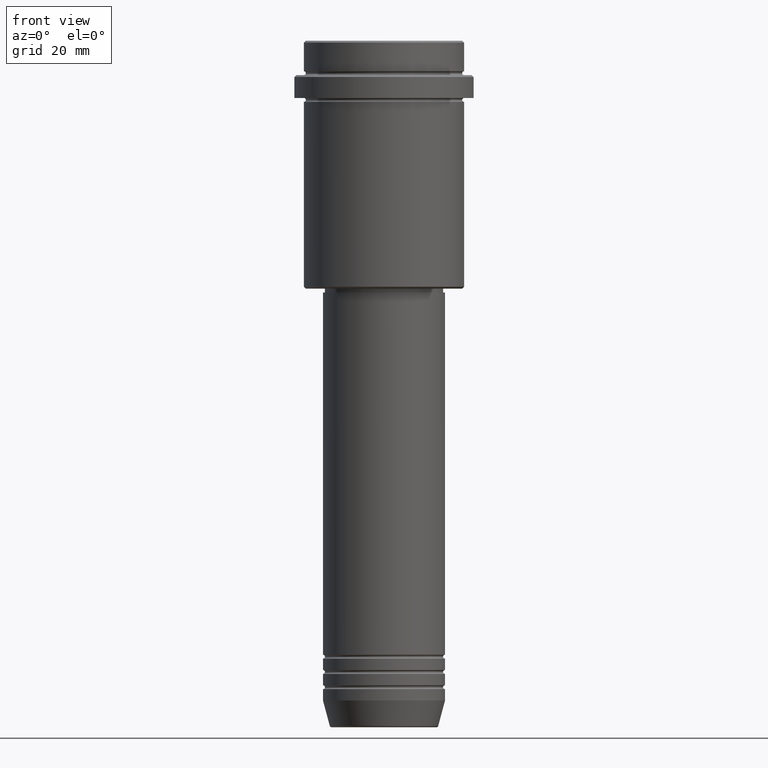
[diagram: clean part render]
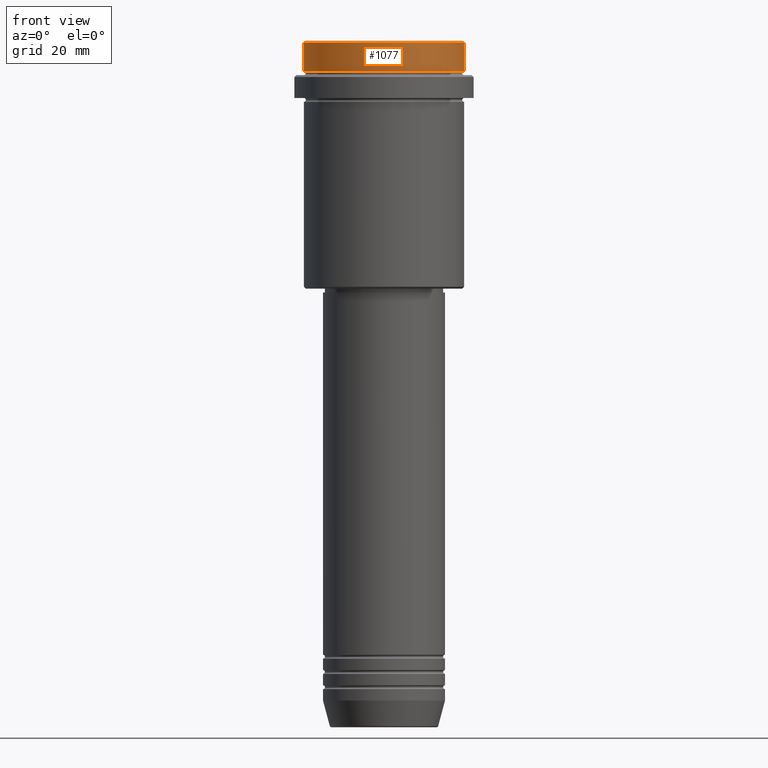
[diagram: same view with one face highlighted and labeled with its STEP entity id]
A machine part, front view. The second image highlights one B-rep face of the part: STEP entity #1077.
In plain terms, the highlighted cylindrical surface (partial cylindrical patch) has radius 21 mm, axis along (-0, -0, 1).
Its self-contained STEP definition (entity closure, byte-faithful):
#2 = CARTESIAN_POINT ( 'NONE',  ( 21.00000000000000000, 0.000000000000000000, -7.999999999999998224 ) ) ;
#57 = CARTESIAN_POINT ( 'NONE',  ( 21.00000000000000000, 0.000000000000000000, -0.5000000000000108802 ) ) ;
#150 = VECTOR ( 'NONE', #1058, 1000.000000000000000 ) ;
#217 = CARTESIAN_POINT ( 'NONE',  ( -21.00000000000000000, 2.571758278209441661E-15, -0.5000000000000108802 ) ) ;
#262 = CIRCLE ( 'NONE', #1029, 21.00000000000000000 ) ;
#275 = EDGE_CURVE ( 'NONE', #638, #1207, #355, .T. ) ;
#309 = ORIENTED_EDGE ( 'NONE', *, *, #926, .F. ) ;
#334 = VERTEX_POINT ( 'NONE', #676 ) ;
#337 = CIRCLE ( 'NONE', #1118, 21.00000000000000000 ) ;
#348 = EDGE_CURVE ( 'NONE', #1207, #533, #262, .T. ) ;
#355 = LINE ( 'NONE', #445, #979 ) ;
#379 = ORIENTED_EDGE ( 'NONE', *, *, #630, .T. ) ;
#442 = EDGE_LOOP ( 'NONE', ( #309, #379, #458, #985 ) ) ;
#445 = CARTESIAN_POINT ( 'NONE',  ( 21.00000000000000000, 0.000000000000000000, 0.000000000000000000 ) ) ;
#454 = DIRECTION ( 'NONE',  ( -0.000000000000000000, -0.000000000000000000, 1.000000000000000000 ) ) ;
#458 = ORIENTED_EDGE ( 'NONE', *, *, #275, .T. ) ;
#462 = DIRECTION ( 'NONE',  ( 1.000000000000000000, 0.000000000000000000, 0.000000000000000000 ) ) ;
#466 = FACE_OUTER_BOUND ( 'NONE', #442, .T. ) ;
#533 = VERTEX_POINT ( 'NONE', #217 ) ;
#548 = DIRECTION ( 'NONE',  ( -0.000000000000000000, -0.000000000000000000, 1.000000000000000000 ) ) ;
#555 = CARTESIAN_POINT ( 'NONE',  ( 0.000000000000000000, 0.000000000000000000, -7.999999999999998224 ) ) ;
#630 = EDGE_CURVE ( 'NONE', #334, #638, #337, .T. ) ;
#638 = VERTEX_POINT ( 'NONE', #2 ) ;
#676 = CARTESIAN_POINT ( 'NONE',  ( -21.00000000000000000, 2.571758278209441661E-15, -7.999999999999998224 ) ) ;
#698 = DIRECTION ( 'NONE',  ( -0.000000000000000000, -0.000000000000000000, 1.000000000000000000 ) ) ;
#768 = DIRECTION ( 'NONE',  ( 1.000000000000000000, 0.000000000000000000, 0.000000000000000000 ) ) ;
#781 = CYLINDRICAL_SURFACE ( 'NONE', #986, 21.00000000000000000 ) ;
#806 = DIRECTION ( 'NONE',  ( 0.000000000000000000, 0.000000000000000000, -1.000000000000000000 ) ) ;
#901 = CARTESIAN_POINT ( 'NONE',  ( 0.000000000000000000, 0.000000000000000000, 0.000000000000000000 ) ) ;
#926 = EDGE_CURVE ( 'NONE', #334, #533, #1084, .T. ) ;
#979 = VECTOR ( 'NONE', #698, 1000.000000000000000 ) ;
#985 = ORIENTED_EDGE ( 'NONE', *, *, #348, .T. ) ;
#986 = AXIS2_PLACEMENT_3D ( 'NONE', #901, #454, #768 ) ;
#1008 = CARTESIAN_POINT ( 'NONE',  ( 0.000000000000000000, 0.000000000000000000, -0.5000000000000108802 ) ) ;
#1029 = AXIS2_PLACEMENT_3D ( 'NONE', #1008, #806, #462 ) ;
#1058 = DIRECTION ( 'NONE',  ( -0.000000000000000000, -0.000000000000000000, 1.000000000000000000 ) ) ;
#1077 = ADVANCED_FACE ( 'NONE', ( #466 ), #781, .T. ) ;
#1084 = LINE ( 'NONE', #1282, #150 ) ;
#1118 = AXIS2_PLACEMENT_3D ( 'NONE', #555, #548, #1217 ) ;
#1207 = VERTEX_POINT ( 'NONE', #57 ) ;
#1217 = DIRECTION ( 'NONE',  ( 1.000000000000000000, 0.000000000000000000, 0.000000000000000000 ) ) ;
#1282 = CARTESIAN_POINT ( 'NONE',  ( -21.00000000000000000, 2.571758278209441661E-15, 0.000000000000000000 ) ) ;